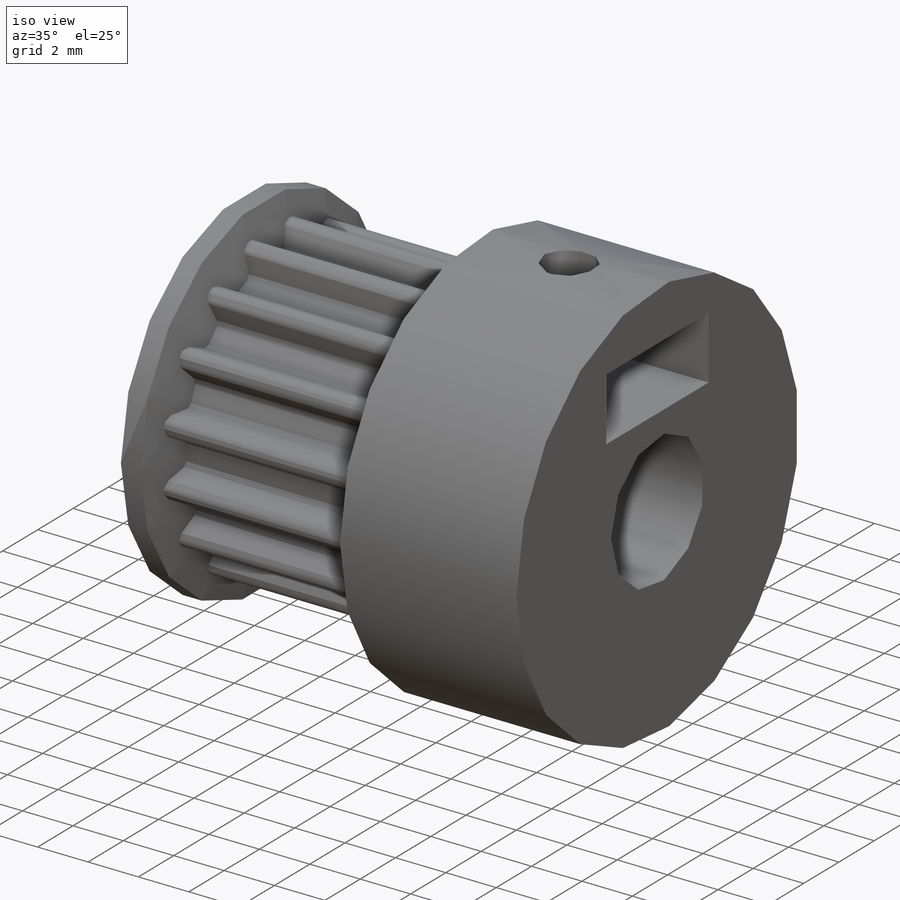
[diagram: iso view]
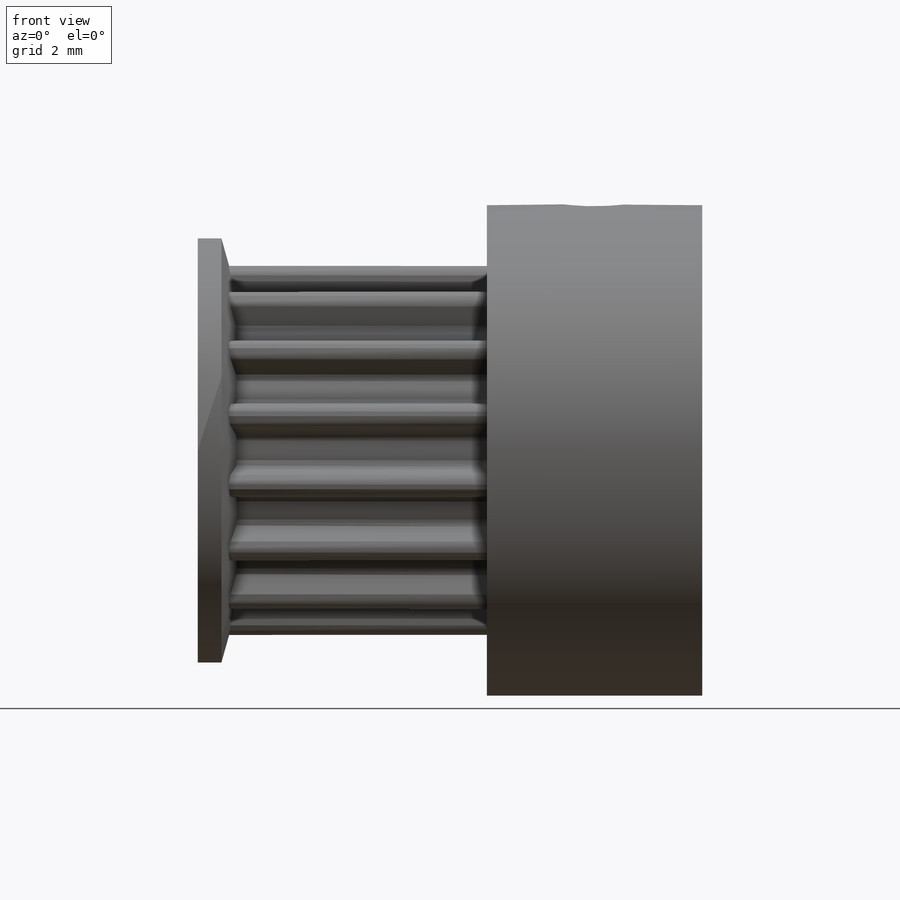
[diagram: front view]
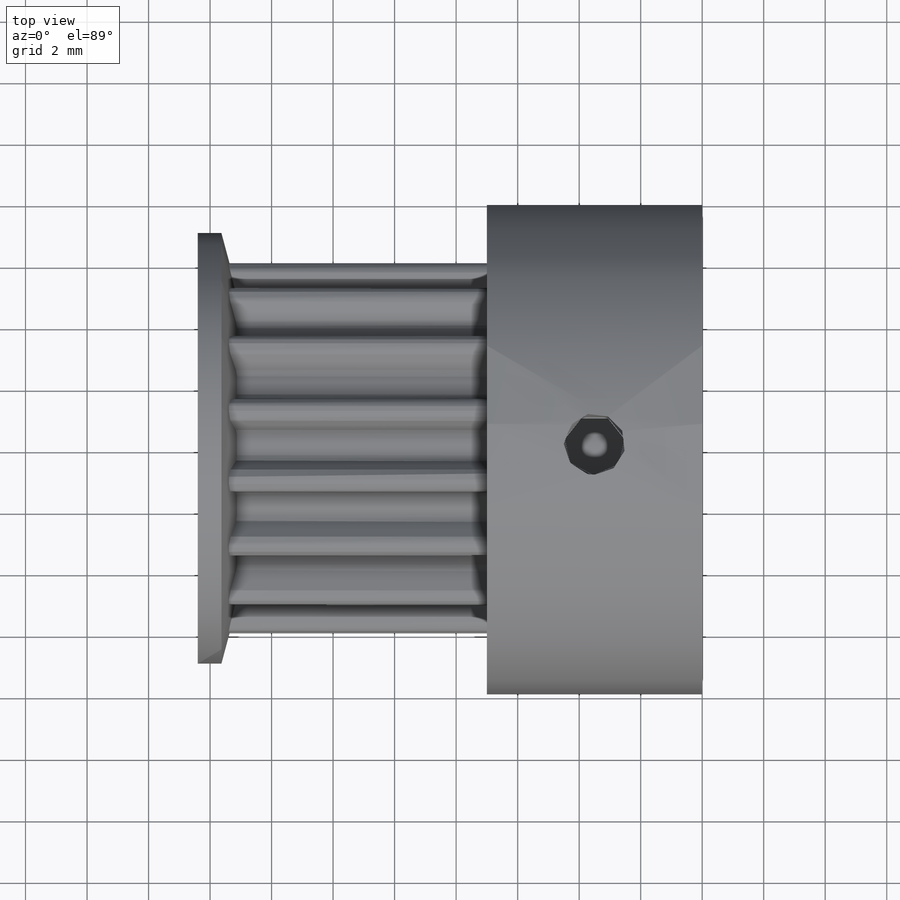
[diagram: top view]
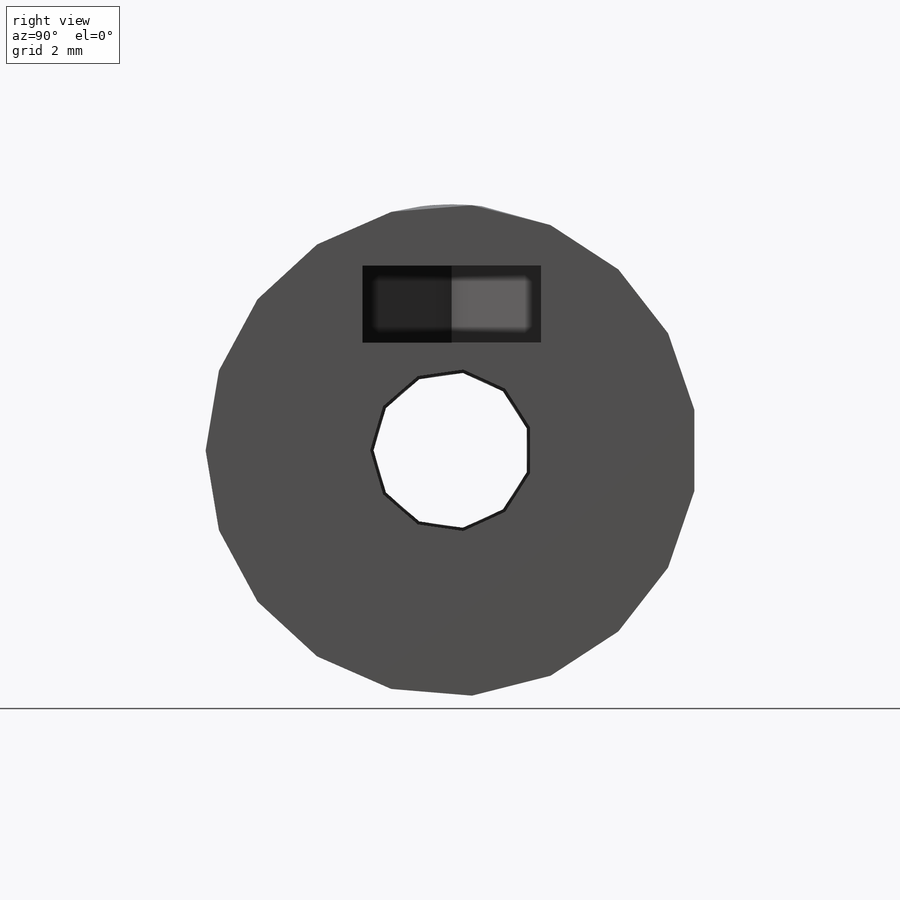
[diagram: right view]
SOLIDWORKS PART (.sldprt)
format: sldprt  version: not decoded by parser v0  size: 622,080 bytes
history: native  units: mm
features: sketch x13, revolve x4, cut_extrude x3, pattern_circular x2, cut_revolve x2, material x1, plane x1 (+14 scaffold rows collapsed)
feature tree (40):
  scaffold x14  (default folders/planes/origin — collapsed)
  material  "Material <not specified>"
  sketch  "Support-Cog"  dims[c1.D1=~2.27001mm c1.D2=~4.54002mm c1.Diam-Roll=4.0mm c1.Diam-Gear=12.2mm c1.Diam-Pitch=~17.542826mm c1.Rad-Tooth=6.6mm c1.Height-Chain=5.0mm c1.Diam-Hole-Shaft=5.3mm c1.D4=0.3mm c1.D5=0.2mm c1.D6=~20.142826mm c2.D1=~19.381804mm c3.D1=60.0deg c3.D2=~16.434289mm c4.D2=45.0deg c4.D1=~2.27001mm c4.Angle-Tooth=120.0deg c4.Pitch=6.0mm c5.D1=~1.382847mm c6.D1=50.0deg c6.D2=0.9mm c6.D3=1.0mm]
  sketch  "Support-Front"  dims[c1.Rad-Fillet-Cog=6.0mm c1.Diam-Gear=~33.364037mm c1.Diam-Hub=16.0mm c1.Diam-Hole=10.0mm c1.Width-Total=16.0mm c1.Width-Hub=~35.820513mm c1.Diam-Pitch=~30.754985mm c1.Diam-Cog-Bottom=130.0mm c1.D1=~18.692134mm c2.D1=10.0deg c2.D2=~3.82193mm c3.D2=20.0deg c3.D1=~18.537788mm c4.D1=10.0deg c4.D2=~3.615282mm c5.D2=20.0deg c5.Width-Cog=9.0mm c5.Diam-Roll=4.0mm c5.D1=19.9mm c6.D1=90.0deg c6.Gap-Chain=1.5mm c6.Width-Cog-Base=9.0mm c7.D1=1.0mm c7.D2=13.0mm c7.Thickn-Flange=0.5mm c7.D3=1.0mm c7.Diam-Flange=17.5mm c7.Diam-Inner-Flange=~8.579455mm c8.D1=~1.56747mm c9.D1=15.0deg c9.D2=~17.328119mm c10.D1=7.25mm c10.Diam-Inner-Flange=11.6mm c10.Diam-Flange=16.0mm c10.D3=~1.284603mm c11.D3=15.0deg c11.Diam-Middle-Flange=14.5mm c11.D1=~7.267221mm c12.D1=~172.109628deg c13.D1=~0.610328mm c14.D1=55.0deg c14.D2=~5.821512mm c15.D2=170.0deg c16.D2=~3.594915mm c17.D2=8.0deg]
  sketch  "Support-Key"  dims[Height-Key=200.0mm Width-Key=2.0mm]
  sketch  "Support-Stop-Screw"  dims[Dist-Hole-Stop-Screw=12.5mm Diam-Stop-Screw=2.0mm]
  sketch  "Sketch2"
  revolve  "Body"  Angle=360deg
  sketch  "Sketch6"  dims[D1=0.0mm]
  cut_extrude  "Cog"  [1 undecoded]
  pattern_circular  "Pattern-Cog"  Count=16 Angle=360deg Num-Cog=16
  sketch  "Sketch3"
  revolve  "Hub"  Angle=360deg
  sketch  "Sketch8"
  cut_revolve  "Hole-Shaft"  Angle=360deg
  sketch  "Sketch11"  dims[D1=0.0mm]
  cut_extrude  "Key"  [1 undecoded]
  sketch  "Sketch15"
  cut_revolve  "Stop-Screw"  Angle=360deg
  pattern_circular  "Pattern-Stop-Screw"  Count=2 Angle=90deg
  sketch  "Sketch16"  dims[D1=1.5mm D2=7.0mm]
  revolve  "Flange-Left"  Angle=360deg
  sketch  "Sketch17"
  revolve  "Flange-Right"  Angle=360deg
  plane  "Plane1"  Offset=3.5mm
  sketch  "Sketch18"  dims[D1=5.8mm]
  cut_extrude  "Cut-Extrude1"  Depth=2.5mm
decode coverage: 17 of 24 modeling features carry decoded parameters
note: ~ marks probable driven/reference dimensions
note: 2 parameter values undecoded
note: suppression state not decoded; provenance and decode notes live in map.json
